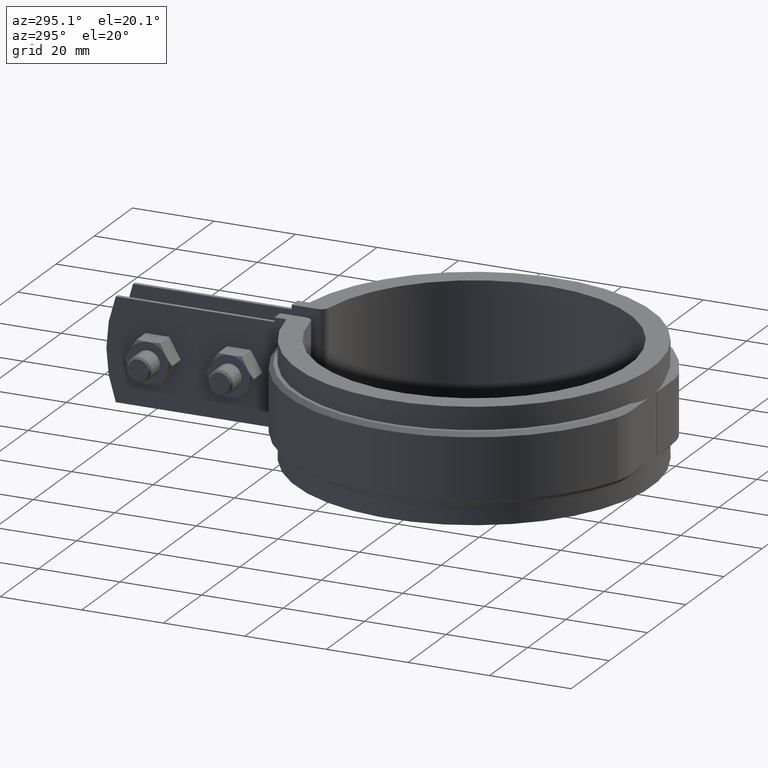
[diagram: clean part render]
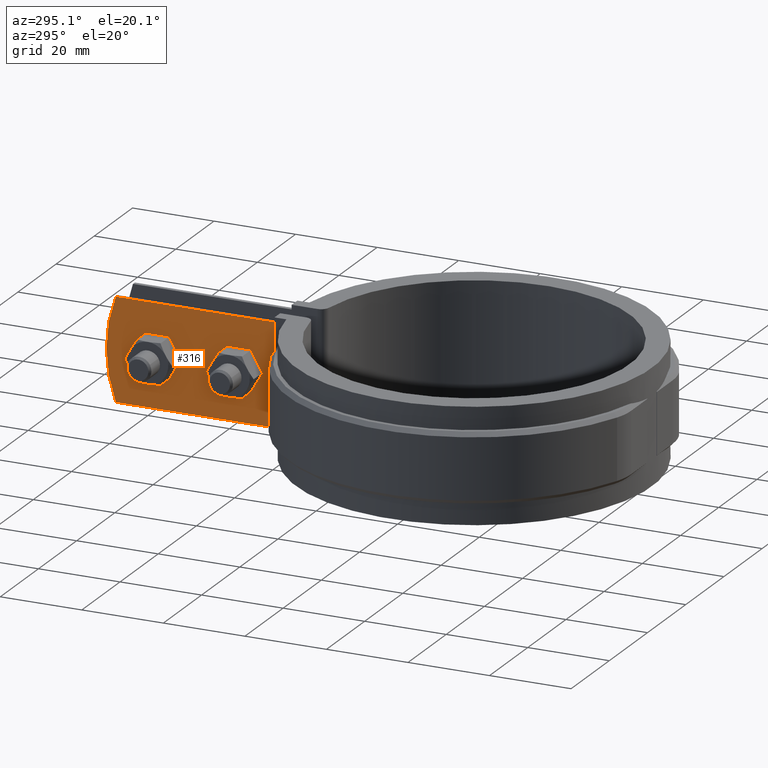
[diagram: same view with one face highlighted and labeled with its STEP entity id]
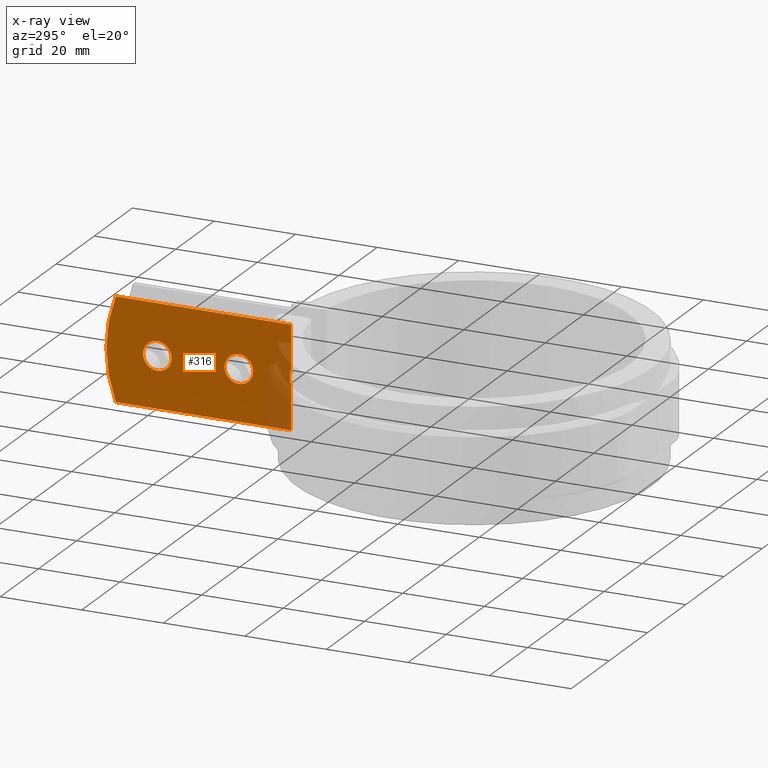
[diagram: x-ray of the same camera — body ghosted, the highlighted face saturated]
A machine part, auxiliary view. The second image highlights one B-rep face of the part: STEP entity #316.
The next image is the same camera in x-ray: the body ghosted, the highlighted face saturated — about 10% of this face is hidden behind the body in this view.
In plain terms, the highlighted planar face has unit normal (-1, 0, 0).
Its self-contained STEP definition (entity closure, byte-faithful):
#316 = ADVANCED_FACE( '', ( #510, #511, #512 ), #513, .T. );
#510 = FACE_OUTER_BOUND( '', #924, .T. );
#511 = FACE_BOUND( '', #925, .T. );
#512 = FACE_BOUND( '', #926, .T. );
#513 = PLANE( '', #927 );
#924 = EDGE_LOOP( '', ( #1877, #1878, #1879, #1880, #1881, #1882 ) );
#925 = EDGE_LOOP( '', ( #1883 ) );
#926 = EDGE_LOOP( '', ( #1884 ) );
#927 = AXIS2_PLACEMENT_3D( '', #1885, #1886, #1887 );
#1877 = ORIENTED_EDGE( '', *, *, #3950, .F. );
#1878 = ORIENTED_EDGE( '', *, *, #3951, .T. );
#1879 = ORIENTED_EDGE( '', *, *, #3952, .F. );
#1880 = ORIENTED_EDGE( '', *, *, #3953, .T. );
#1881 = ORIENTED_EDGE( '', *, *, #3954, .T. );
#1882 = ORIENTED_EDGE( '', *, *, #3955, .T. );
#1883 = ORIENTED_EDGE( '', *, *, #3956, .T. );
#1884 = ORIENTED_EDGE( '', *, *, #3957, .T. );
#1885 = CARTESIAN_POINT( '', ( -5.00000000000000, 87.8451037457368, -12.5000000000000 ) );
#1886 = DIRECTION( '', ( -1.00000000000000, 6.16283340149655E-017, 0.000000000000000 ) );
#1887 = DIRECTION( '', ( 6.16283340149655E-017, 1.00000000000000, 0.000000000000000 ) );
#3950 = EDGE_CURVE( '', #4448, #4449, #4450, .T. );
#3951 = EDGE_CURVE( '', #4448, #4451, #4452, .T. );
#3952 = EDGE_CURVE( '', #4453, #4451, #4454, .T. );
#3953 = EDGE_CURVE( '', #4453, #4455, #4456, .T. );
#3954 = EDGE_CURVE( '', #4455, #4457, #4458, .T. );
#3955 = EDGE_CURVE( '', #4457, #4449, #4459, .T. );
#3956 = EDGE_CURVE( '', #4460, #4460, #4461, .F. );
#3957 = EDGE_CURVE( '', #4462, #4462, #4463, .F. );
#4448 = VERTEX_POINT( '', #5273 );
#4449 = VERTEX_POINT( '', #5274 );
#4450 = B_SPLINE_CURVE_WITH_KNOTS( '', 3, ( #5275, #5276, #5277, #5278, #5279, #5280, #5281, #5282 ), .UNSPECIFIED., .F., .F., ( 4, 2, 2, 4 ), ( 1.36609473733174E-017, 0.00180710444006227, 0.00271065666009339, 0.00361420888012452 ), .UNSPECIFIED. );
#4451 = VERTEX_POINT( '', #5283 );
#4452 = LINE( '', #5284, #5285 );
#4453 = VERTEX_POINT( '', #5286 );
#4454 = LINE( '', #5287, #5288 );
#4455 = VERTEX_POINT( '', #5289 );
#4456 = CIRCLE( '', #5290, 35.0000000000002 );
#4457 = VERTEX_POINT( '', #5291 );
#4458 = LINE( '', #5292, #5293 );
#4459 = LINE( '', #5294, #5295 );
#4460 = VERTEX_POINT( '', #5296 );
#4461 = CIRCLE( '', #5297, 3.50000000000002 );
#4462 = VERTEX_POINT( '', #5298 );
#4463 = CIRCLE( '', #5299, 3.50000000000002 );
#5273 = CARTESIAN_POINT( '', ( -5.00000000000000, 42.5784276365391, 1.78972355179542 ) );
#5274 = CARTESIAN_POINT( '', ( -5.00000000000000, 42.5784276365391, -1.78972355179737 ) );
#5275 = CARTESIAN_POINT( '', ( -5.00000000000000, 42.5784276365391, 1.78972355179541 ) );
#5276 = CARTESIAN_POINT( '', ( -5.00000000000000, 42.7623800124425, 1.20728077000469 ) );
#5277 = CARTESIAN_POINT( '', ( -5.00000000000000, 42.8570859072648, 0.612302021114647 ) );
#5278 = CARTESIAN_POINT( '', ( -5.00000000000000, 42.8577379650877, -0.300028743027237 ) );
#5279 = CARTESIAN_POINT( '', ( -5.00000000000000, 42.8334702706240, -0.605077647068514 ) );
#5280 = CARTESIAN_POINT( '', ( -5.00000000000000, 42.7398033305823, -1.20320374920714 ) );
#5281 = CARTESIAN_POINT( '', ( -4.99999999999999, 42.6704348396631, -1.49840395851060 ) );
#5282 = CARTESIAN_POINT( '', ( -4.99999999999999, 42.5784276365391, -1.78972355179744 ) );
#5283 = CARTESIAN_POINT( '', ( -5.00000000000000, 42.5784276365391, 12.5000000000000 ) );
#5284 = CARTESIAN_POINT( '', ( -5.00000000000000, 42.5784276365391, -12.5000000000000 ) );
#5285 = VECTOR( '', #8106, 1000.00000000000 );
#5286 = CARTESIAN_POINT( '', ( -5.00000000000000, 85.5368458222914, 12.5000000000000 ) );
#5287 = CARTESIAN_POINT( '', ( -5.00000000000000, 87.8451037457368, 12.5000000000000 ) );
#5288 = VECTOR( '', #8107, 1000.00000000000 );
#5289 = CARTESIAN_POINT( '', ( -5.00000000000000, 85.5368458222911, -12.5000000000000 ) );
#5290 = AXIS2_PLACEMENT_3D( '', #8108, #8109, #8110 );
#5291 = CARTESIAN_POINT( '', ( -5.00000000000000, 42.5784276365391, -12.5000000000000 ) );
#5292 = CARTESIAN_POINT( '', ( -5.00000000000000, 87.8451037457368, -12.5000000000000 ) );
#5293 = VECTOR( '', #8111, 1000.00000000000 );
#5294 = CARTESIAN_POINT( '', ( -5.00000000000000, 42.5784276365391, -12.5000000000000 ) );
#5295 = VECTOR( '', #8112, 1000.00000000000 );
#5296 = CARTESIAN_POINT( '', ( -5.00000000000000, 71.8451037457367, -7.19910242530375E-014 ) );
#5297 = AXIS2_PLACEMENT_3D( '', #8113, #8114, #8115 );
#5298 = CARTESIAN_POINT( '', ( -5.00000000000000, 51.8451037457367, -7.19910242530375E-014 ) );
#5299 = AXIS2_PLACEMENT_3D( '', #8116, #8117, #8118 );
#8106 = DIRECTION( '', ( 0.000000000000000, 0.000000000000000, 1.00000000000000 ) );
#8107 = DIRECTION( '', ( -6.16283340149655E-017, -1.00000000000000, 0.000000000000000 ) );
#8108 = CARTESIAN_POINT( '', ( -4.99999999999998, 52.8451037457359, 4.44089209850063E-013 ) );
#8109 = DIRECTION( '', ( -1.00000000000000, 6.16283340149655E-017, 0.000000000000000 ) );
#8110 = DIRECTION( '', ( -6.16283340149655E-017, -1.00000000000000, 0.000000000000000 ) );
#8111 = DIRECTION( '', ( -6.16283340149655E-017, -1.00000000000000, 0.000000000000000 ) );
#8112 = DIRECTION( '', ( 0.000000000000000, 0.000000000000000, 1.00000000000000 ) );
#8113 = CARTESIAN_POINT( '', ( -5.00000000000000, 75.3451037457367, -7.19910242530375E-014 ) );
#8114 = DIRECTION( '', ( -1.00000000000000, 6.16283340149655E-017, 0.000000000000000 ) );
#8115 = DIRECTION( '', ( -6.16283340149655E-017, -1.00000000000000, 0.000000000000000 ) );
#8116 = CARTESIAN_POINT( '', ( -5.00000000000000, 55.3451037457367, -7.19910242530375E-014 ) );
#8117 = DIRECTION( '', ( -1.00000000000000, 6.16283340149655E-017, 0.000000000000000 ) );
#8118 = DIRECTION( '', ( -6.16283340149655E-017, -1.00000000000000, 0.000000000000000 ) );